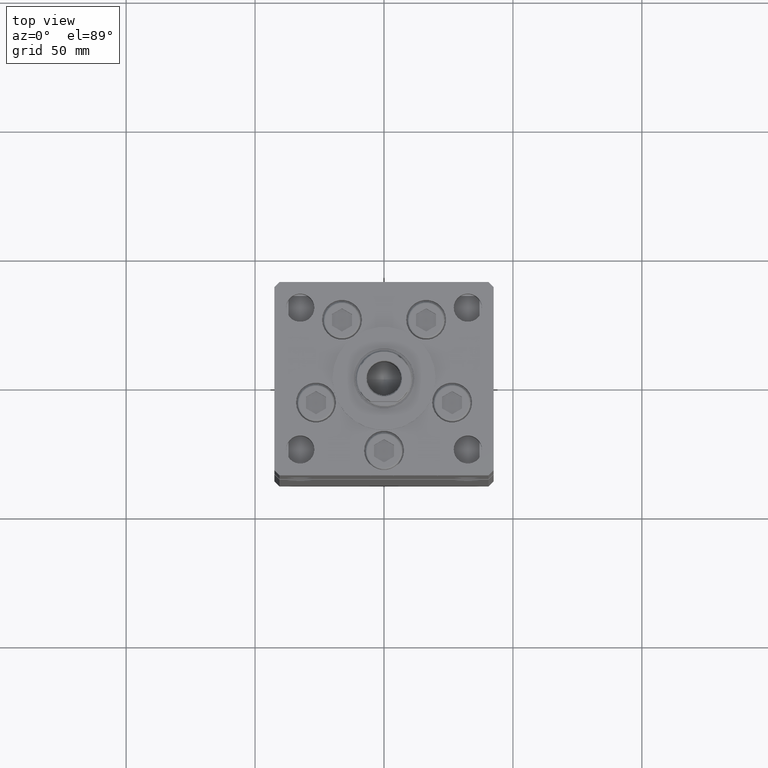
[diagram: clean part render]
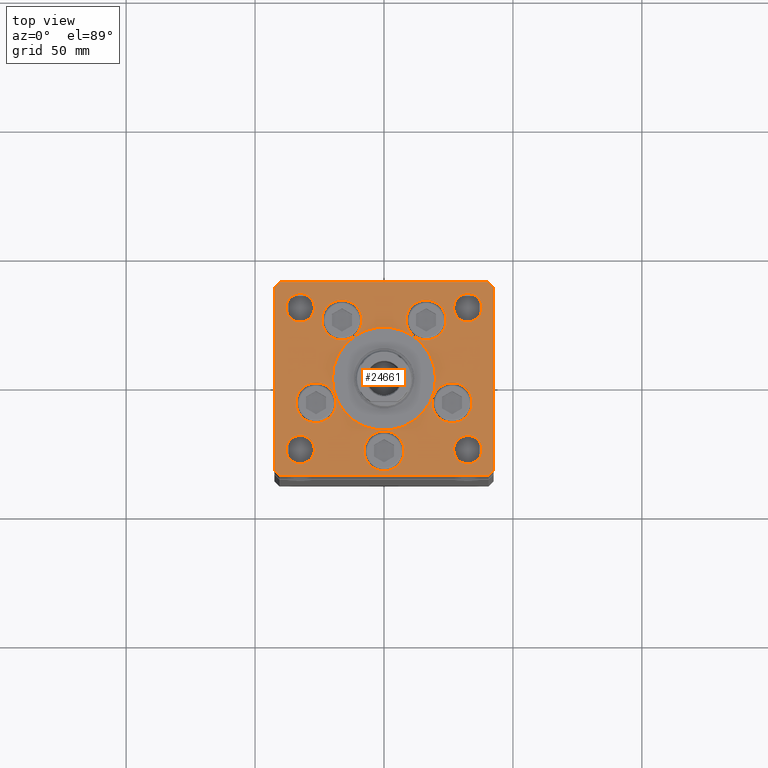
[diagram: same view with one face highlighted and labeled with its STEP entity id]
A machine part, top view. The second image highlights one B-rep face of the part: STEP entity #24661.
In plain terms, the highlighted planar face has unit normal (0, 0, 1).
Its self-contained STEP definition (entity closure, byte-faithful):
#182 = ORIENTED_EDGE ( 'NONE', *, *, #28743, .T. ) ;
#289 = LINE ( 'NONE', #20963, #5026 ) ;
#404 = VERTEX_POINT ( 'NONE', #52682 ) ;
#503 = FACE_BOUND ( 'NONE', #52999, .T. ) ;
#887 = DIRECTION ( 'NONE',  ( 1.000000000000000000, 0.000000000000000000, 0.000000000000000000 ) ) ;
#936 = CARTESIAN_POINT ( 'NONE',  ( -32.50000000000000000, -27.50000000000000355, 0.000000000000000000 ) ) ;
#1400 = CARTESIAN_POINT ( 'NONE',  ( -7.750000000000000000, -28.00000000000000000, 0.000000000000000000 ) ) ;
#1424 = ORIENTED_EDGE ( 'NONE', *, *, #34228, .F. ) ;
#1489 = DIRECTION ( 'NONE',  ( 0.000000000000000000, 0.000000000000000000, 1.000000000000000000 ) ) ;
#1521 = CIRCLE ( 'NONE', #10112, 7.750000000000000000 ) ;
#1738 = EDGE_CURVE ( 'NONE', #39059, #22025, #47368, .T. ) ;
#2054 = EDGE_CURVE ( 'NONE', #37003, #44862, #48295, .T. ) ;
#2302 = DIRECTION ( 'NONE',  ( -1.000000000000000000, 0.000000000000000000, 0.000000000000000000 ) ) ;
#2509 = AXIS2_PLACEMENT_3D ( 'NONE', #38812, #43905, #47935 ) ;
#2560 = LINE ( 'NONE', #51504, #47612 ) ;
#2813 = LINE ( 'NONE', #23775, #9135 ) ;
#2861 = VERTEX_POINT ( 'NONE', #51865 ) ;
#3052 = DIRECTION ( 'NONE',  ( -0.000000000000000000, -0.000000000000000000, -1.000000000000000000 ) ) ;
#3112 = ORIENTED_EDGE ( 'NONE', *, *, #21537, .T. ) ;
#3258 = EDGE_CURVE ( 'NONE', #46494, #52087, #38905, .T. ) ;
#3357 = DIRECTION ( 'NONE',  ( 0.000000000000000000, 0.000000000000000000, 1.000000000000000000 ) ) ;
#3468 = FACE_BOUND ( 'NONE', #32146, .T. ) ;
#4038 = DIRECTION ( 'NONE',  ( 0.7071067811865487940, -0.7071067811865463515, 0.000000000000000000 ) ) ;
#4223 = CARTESIAN_POINT ( 'NONE',  ( 0.000000000000000000, -6.938893903907228378E-15, 0.000000000000000000 ) ) ;
#4269 = VERTEX_POINT ( 'NONE', #27394 ) ;
#4752 = DIRECTION ( 'NONE',  ( 1.000000000000000000, 0.000000000000000000, 0.000000000000000000 ) ) ;
#5026 = VECTOR ( 'NONE', #4038, 1000.000000000000000 ) ;
#5063 = AXIS2_PLACEMENT_3D ( 'NONE', #20726, #16705, #25036 ) ;
#5550 = EDGE_CURVE ( 'NONE', #33806, #33852, #50131, .T. ) ;
#5691 = AXIS2_PLACEMENT_3D ( 'NONE', #19826, #43778, #40002 ) ;
#5776 = CARTESIAN_POINT ( 'NONE',  ( -38.00000000000000000, 27.50000000000000711, 0.000000000000000000 ) ) ;
#5881 = CIRCLE ( 'NONE', #19616, 5.499999999999998224 ) ;
#6732 = VECTOR ( 'NONE', #43302, 1000.000000000000000 ) ;
#6931 = EDGE_CURVE ( 'NONE', #11639, #4269, #14106, .T. ) ;
#7286 = EDGE_CURVE ( 'NONE', #21506, #36299, #51907, .T. ) ;
#7339 = VECTOR ( 'NONE', #48177, 1000.000000000000000 ) ;
#7345 = CIRCLE ( 'NONE', #37379, 7.750000000000000000 ) ;
#7581 = CARTESIAN_POINT ( 'NONE',  ( 42.50000000000000711, -35.49999999999992895, 0.000000000000000000 ) ) ;
#7773 = FACE_BOUND ( 'NONE', #52005, .T. ) ;
#7794 = CARTESIAN_POINT ( 'NONE',  ( -32.50000000000000000, 27.50000000000000711, 0.000000000000000000 ) ) ;
#8287 = FACE_BOUND ( 'NONE', #50243, .T. ) ;
#8557 = FACE_BOUND ( 'NONE', #13956, .T. ) ;
#8930 = CARTESIAN_POINT ( 'NONE',  ( 26.39865316429777664, -9.333333333333330373, 0.000000000000000000 ) ) ;
#9135 = VECTOR ( 'NONE', #40185, 1000.000000000000000 ) ;
#9305 = CARTESIAN_POINT ( 'NONE',  ( -34.14865316429777664, -9.333333333333328596, 0.000000000000000000 ) ) ;
#9579 = DIRECTION ( 'NONE',  ( 1.000000000000000000, 0.000000000000000000, 0.000000000000000000 ) ) ;
#9998 = CARTESIAN_POINT ( 'NONE',  ( -40.50000000000000711, -37.50000000000003553, 0.000000000000000000 ) ) ;
#10080 = CARTESIAN_POINT ( 'NONE',  ( 32.50000000000000000, 27.49999999999999645, 0.000000000000000000 ) ) ;
#10112 = AXIS2_PLACEMENT_3D ( 'NONE', #14166, #10128, #26524 ) ;
#10128 = DIRECTION ( 'NONE',  ( 0.000000000000000000, 0.000000000000000000, 1.000000000000000000 ) ) ;
#10599 = EDGE_LOOP ( 'NONE', ( #26199, #182 ) ) ;
#11185 = EDGE_CURVE ( 'NONE', #14925, #38842, #33115, .T. ) ;
#11336 = LINE ( 'NONE', #15384, #7339 ) ;
#11639 = VERTEX_POINT ( 'NONE', #9305 ) ;
#11999 = AXIS2_PLACEMENT_3D ( 'NONE', #15994, #3357, #51775 ) ;
#12482 = DIRECTION ( 'NONE',  ( 0.000000000000000000, 0.000000000000000000, 1.000000000000000000 ) ) ;
#12719 = LINE ( 'NONE', #20775, #47146 ) ;
#13175 = ORIENTED_EDGE ( 'NONE', *, *, #17395, .F. ) ;
#13466 = VERTEX_POINT ( 'NONE', #25718 ) ;
#13597 = CIRCLE ( 'NONE', #39347, 5.499999999999998224 ) ;
#13617 = DIRECTION ( 'NONE',  ( 0.000000000000000000, 0.000000000000000000, 1.000000000000000000 ) ) ;
#13666 = EDGE_CURVE ( 'NONE', #13466, #43003, #45048, .T. ) ;
#13760 = CARTESIAN_POINT ( 'NONE',  ( 24.07291334290544071, 22.74999999999999289, 0.000000000000000000 ) ) ;
#13832 = DIRECTION ( 'NONE',  ( 1.000000000000000000, 0.000000000000000000, 0.000000000000000000 ) ) ;
#13848 = DIRECTION ( 'NONE',  ( 9.773090005503134168E-17, -1.000000000000000000, 0.000000000000000000 ) ) ;
#13956 = EDGE_LOOP ( 'NONE', ( #15370, #13175 ) ) ;
#14038 = ORIENTED_EDGE ( 'NONE', *, *, #33581, .F. ) ;
#14070 = VERTEX_POINT ( 'NONE', #9998 ) ;
#14106 = CIRCLE ( 'NONE', #39016, 7.750000000000000000 ) ;
#14166 = CARTESIAN_POINT ( 'NONE',  ( 0.000000000000000000, -28.00000000000000000, 0.000000000000000000 ) ) ;
#14212 = ORIENTED_EDGE ( 'NONE', *, *, #6931, .F. ) ;
#14372 = DIRECTION ( 'NONE',  ( 1.000000000000000000, 0.000000000000000000, 0.000000000000000000 ) ) ;
#14390 = DIRECTION ( 'NONE',  ( 1.000000000000000000, 0.000000000000000000, 0.000000000000000000 ) ) ;
#14409 = CARTESIAN_POINT ( 'NONE',  ( -32.50000000000000000, 27.50000000000000711, 0.000000000000000000 ) ) ;
#14909 = ORIENTED_EDGE ( 'NONE', *, *, #5550, .F. ) ;
#14925 = VERTEX_POINT ( 'NONE', #24392 ) ;
#15168 = ORIENTED_EDGE ( 'NONE', *, *, #23149, .F. ) ;
#15180 = CIRCLE ( 'NONE', #41759, 5.499999999999998224 ) ;
#15346 = DIRECTION ( 'NONE',  ( -1.000000000000000000, 0.000000000000000000, 0.000000000000000000 ) ) ;
#15370 = ORIENTED_EDGE ( 'NONE', *, *, #19023, .F. ) ;
#15371 = CIRCLE ( 'NONE', #2509, 7.750000000000000000 ) ;
#15384 = CARTESIAN_POINT ( 'NONE',  ( 40.50000000000000711, 37.50000000000000711, 0.000000000000000000 ) ) ;
#15656 = CARTESIAN_POINT ( 'NONE',  ( -27.00000000000000355, 27.50000000000000711, 0.000000000000000000 ) ) ;
#15841 = DIRECTION ( 'NONE',  ( 1.000000000000000000, 0.000000000000000000, 0.000000000000000000 ) ) ;
#15994 = CARTESIAN_POINT ( 'NONE',  ( -32.50000000000000000, -27.50000000000000355, 0.000000000000000000 ) ) ;
#16104 = FACE_BOUND ( 'NONE', #48966, .T. ) ;
#16139 = ORIENTED_EDGE ( 'NONE', *, *, #17139, .T. ) ;
#16475 = ORIENTED_EDGE ( 'NONE', *, *, #23548, .T. ) ;
#16705 = DIRECTION ( 'NONE',  ( -0.000000000000000000, -0.000000000000000000, -1.000000000000000000 ) ) ;
#17105 = EDGE_CURVE ( 'NONE', #36299, #21506, #15180, .T. ) ;
#17139 = EDGE_CURVE ( 'NONE', #14070, #32161, #2813, .T. ) ;
#17395 = EDGE_CURVE ( 'NONE', #52146, #41834, #35735, .T. ) ;
#17612 = EDGE_LOOP ( 'NONE', ( #31308, #31572 ) ) ;
#17711 = AXIS2_PLACEMENT_3D ( 'NONE', #42507, #50566, #38191 ) ;
#19023 = EDGE_CURVE ( 'NONE', #41834, #52146, #39245, .T. ) ;
#19131 = AXIS2_PLACEMENT_3D ( 'NONE', #8930, #25860, #887 ) ;
#19616 = AXIS2_PLACEMENT_3D ( 'NONE', #10080, #1489, #14390 ) ;
#19729 = AXIS2_PLACEMENT_3D ( 'NONE', #21596, #37464, #24831 ) ;
#19826 = CARTESIAN_POINT ( 'NONE',  ( 0.000000000000000000, -6.938893903907228378E-15, 0.000000000000000000 ) ) ;
#20064 = AXIS2_PLACEMENT_3D ( 'NONE', #50417, #26206, #29715 ) ;
#20726 = CARTESIAN_POINT ( 'NONE',  ( 32.50000000000000000, -27.50000000000000355, 0.000000000000000000 ) ) ;
#20775 = CARTESIAN_POINT ( 'NONE',  ( 40.50000000000001421, -37.49999999999992184, 0.000000000000000000 ) ) ;
#20875 = DIRECTION ( 'NONE',  ( 0.000000000000000000, 0.000000000000000000, 1.000000000000000000 ) ) ;
#20963 = CARTESIAN_POINT ( 'NONE',  ( -42.50000000000000000, -35.50000000000004263, 0.000000000000000000 ) ) ;
#21405 = CARTESIAN_POINT ( 'NONE',  ( -26.39865316429777664, -9.333333333333330373, 0.000000000000000000 ) ) ;
#21506 = VERTEX_POINT ( 'NONE', #5776 ) ;
#21537 = EDGE_CURVE ( 'NONE', #28935, #24092, #25663, .T. ) ;
#21596 = CARTESIAN_POINT ( 'NONE',  ( -26.39865316429777664, -9.333333333333330373, 0.000000000000000000 ) ) ;
#22025 = VERTEX_POINT ( 'NONE', #30714 ) ;
#22396 = EDGE_CURVE ( 'NONE', #43600, #28975, #13597, .T. ) ;
#22891 = CARTESIAN_POINT ( 'NONE',  ( 42.50000000000000711, -35.49999999999992895, 0.000000000000000000 ) ) ;
#23029 = CARTESIAN_POINT ( 'NONE',  ( 16.32291334290544071, 22.74999999999999289, 0.000000000000000000 ) ) ;
#23149 = EDGE_CURVE ( 'NONE', #33852, #33806, #5881, .T. ) ;
#23269 = ORIENTED_EDGE ( 'NONE', *, *, #11185, .F. ) ;
#23548 = EDGE_CURVE ( 'NONE', #24092, #14070, #289, .T. ) ;
#23682 = ORIENTED_EDGE ( 'NONE', *, *, #2054, .F. ) ;
#23775 = CARTESIAN_POINT ( 'NONE',  ( -40.50000000000000711, -37.50000000000003553, 0.000000000000000000 ) ) ;
#23922 = DIRECTION ( 'NONE',  ( -0.000000000000000000, -0.000000000000000000, -1.000000000000000000 ) ) ;
#24092 = VERTEX_POINT ( 'NONE', #33681 ) ;
#24392 = CARTESIAN_POINT ( 'NONE',  ( -24.07291334290544071, 22.74999999999999289, 0.000000000000000000 ) ) ;
#24661 = ADVANCED_FACE ( 'NONE', ( #8557, #16104, #49148, #7773, #503, #8287, #36780, #36257, #3468, #48628, #28988 ), #52661, .T. ) ;
#24831 = DIRECTION ( 'NONE',  ( 1.000000000000000000, 0.000000000000000000, 0.000000000000000000 ) ) ;
#25036 = DIRECTION ( 'NONE',  ( -1.000000000000000000, 0.000000000000000000, 0.000000000000000000 ) ) ;
#25325 = AXIS2_PLACEMENT_3D ( 'NONE', #42604, #51725, #14372 ) ;
#25358 = CARTESIAN_POINT ( 'NONE',  ( 38.00000000000000000, -27.50000000000000355, 0.000000000000000000 ) ) ;
#25663 = LINE ( 'NONE', #50676, #45316 ) ;
#25718 = CARTESIAN_POINT ( 'NONE',  ( -27.00000000000000355, -27.50000000000000355, 0.000000000000000000 ) ) ;
#25786 = EDGE_CURVE ( 'NONE', #32161, #39059, #12719, .T. ) ;
#25860 = DIRECTION ( 'NONE',  ( 0.000000000000000000, 0.000000000000000000, 1.000000000000000000 ) ) ;
#26199 = ORIENTED_EDGE ( 'NONE', *, *, #22396, .T. ) ;
#26206 = DIRECTION ( 'NONE',  ( 0.000000000000000000, 0.000000000000000000, 1.000000000000000000 ) ) ;
#26524 = DIRECTION ( 'NONE',  ( 1.000000000000000000, 0.000000000000000000, 0.000000000000000000 ) ) ;
#26659 = EDGE_CURVE ( 'NONE', #4269, #11639, #37718, .T. ) ;
#27161 = CARTESIAN_POINT ( 'NONE',  ( -40.50000000000000000, 37.49999999999997158, 0.000000000000000000 ) ) ;
#27394 = CARTESIAN_POINT ( 'NONE',  ( -18.64865316429777664, -9.333333333333330373, 0.000000000000000000 ) ) ;
#27413 = EDGE_LOOP ( 'NONE', ( #16475, #16139, #42611, #32711, #49602, #42630, #30064, #3112 ) ) ;
#28376 = EDGE_CURVE ( 'NONE', #43003, #13466, #36900, .T. ) ;
#28511 = CARTESIAN_POINT ( 'NONE',  ( -16.32291334290544071, 22.74999999999999289, 0.000000000000000000 ) ) ;
#28621 = CARTESIAN_POINT ( 'NONE',  ( 16.32291334290544071, 22.74999999999999289, 0.000000000000000000 ) ) ;
#28695 = AXIS2_PLACEMENT_3D ( 'NONE', #7794, #23922, #15346 ) ;
#28743 = EDGE_CURVE ( 'NONE', #28975, #43600, #43726, .T. ) ;
#28887 = DIRECTION ( 'NONE',  ( 1.000000000000000000, 0.000000000000000000, 0.000000000000000000 ) ) ;
#28935 = VERTEX_POINT ( 'NONE', #38746 ) ;
#28975 = VERTEX_POINT ( 'NONE', #51394 ) ;
#28988 = FACE_BOUND ( 'NONE', #10599, .T. ) ;
#29287 = ORIENTED_EDGE ( 'NONE', *, *, #26659, .F. ) ;
#29404 = VECTOR ( 'NONE', #39562, 1000.000000000000000 ) ;
#29715 = DIRECTION ( 'NONE',  ( 1.000000000000000000, 0.000000000000000000, 0.000000000000000000 ) ) ;
#29925 = CARTESIAN_POINT ( 'NONE',  ( -8.572913342905440715, 22.74999999999999289, 0.000000000000000000 ) ) ;
#30064 = ORIENTED_EDGE ( 'NONE', *, *, #48008, .T. ) ;
#30408 = CARTESIAN_POINT ( 'NONE',  ( -38.00000000000000000, -27.50000000000000355, 0.000000000000000000 ) ) ;
#30714 = CARTESIAN_POINT ( 'NONE',  ( 42.50000000000001421, 35.50000000000002132, 0.000000000000000000 ) ) ;
#30807 = DIRECTION ( 'NONE',  ( -0.000000000000000000, -0.000000000000000000, -1.000000000000000000 ) ) ;
#31308 = ORIENTED_EDGE ( 'NONE', *, *, #17105, .T. ) ;
#31413 = AXIS2_PLACEMENT_3D ( 'NONE', #28511, #36580, #40881 ) ;
#31572 = ORIENTED_EDGE ( 'NONE', *, *, #7286, .T. ) ;
#31627 = EDGE_CURVE ( 'NONE', #22025, #404, #2560, .T. ) ;
#31632 = DIRECTION ( 'NONE',  ( 1.000000000000000000, 0.000000000000000000, 0.000000000000000000 ) ) ;
#31983 = AXIS2_PLACEMENT_3D ( 'NONE', #28621, #12482, #28887 ) ;
#32146 = EDGE_LOOP ( 'NONE', ( #50764, #48069 ) ) ;
#32161 = VERTEX_POINT ( 'NONE', #50293 ) ;
#32711 = ORIENTED_EDGE ( 'NONE', *, *, #1738, .T. ) ;
#33063 = ORIENTED_EDGE ( 'NONE', *, *, #49539, .F. ) ;
#33115 = CIRCLE ( 'NONE', #31413, 7.750000000000000000 ) ;
#33154 = DIRECTION ( 'NONE',  ( 0.7071067811865474617, 0.7071067811865474617, 0.000000000000000000 ) ) ;
#33581 = EDGE_CURVE ( 'NONE', #50660, #2861, #46808, .T. ) ;
#33681 = CARTESIAN_POINT ( 'NONE',  ( -42.50000000000000000, -35.50000000000004263, 0.000000000000000000 ) ) ;
#33806 = VERTEX_POINT ( 'NONE', #41392 ) ;
#33852 = VERTEX_POINT ( 'NONE', #34406 ) ;
#34228 = EDGE_CURVE ( 'NONE', #44862, #37003, #7345, .T. ) ;
#34261 = DIRECTION ( 'NONE',  ( 0.000000000000000000, 0.000000000000000000, 1.000000000000000000 ) ) ;
#34299 = DIRECTION ( 'NONE',  ( -0.7071067811865524577, 0.7071067811865426878, 0.000000000000000000 ) ) ;
#34406 = CARTESIAN_POINT ( 'NONE',  ( 27.00000000000000355, 27.49999999999999645, 0.000000000000000000 ) ) ;
#35323 = DIRECTION ( 'NONE',  ( -1.000000000000000000, 0.000000000000000000, 0.000000000000000000 ) ) ;
#35735 = CIRCLE ( 'NONE', #5691, 20.00000000000000000 ) ;
#36257 = FACE_BOUND ( 'NONE', #36265, .T. ) ;
#36265 = EDGE_LOOP ( 'NONE', ( #14909, #15168 ) ) ;
#36299 = VERTEX_POINT ( 'NONE', #15656 ) ;
#36580 = DIRECTION ( 'NONE',  ( 0.000000000000000000, 0.000000000000000000, 1.000000000000000000 ) ) ;
#36780 = FACE_BOUND ( 'NONE', #17612, .T. ) ;
#36900 = CIRCLE ( 'NONE', #11999, 5.499999999999998224 ) ;
#37003 = VERTEX_POINT ( 'NONE', #52805 ) ;
#37379 = AXIS2_PLACEMENT_3D ( 'NONE', #23029, #51801, #31632 ) ;
#37464 = DIRECTION ( 'NONE',  ( 0.000000000000000000, 0.000000000000000000, 1.000000000000000000 ) ) ;
#37718 = CIRCLE ( 'NONE', #19729, 7.750000000000000000 ) ;
#37965 = CARTESIAN_POINT ( 'NONE',  ( 18.64865316429777664, -9.333333333333328596, 0.000000000000000000 ) ) ;
#38170 = EDGE_CURVE ( 'NONE', #404, #47970, #11336, .T. ) ;
#38191 = DIRECTION ( 'NONE',  ( 1.000000000000000000, 0.000000000000000000, 0.000000000000000000 ) ) ;
#38746 = CARTESIAN_POINT ( 'NONE',  ( -42.50000000000000711, 35.50000000000000000, 0.000000000000000000 ) ) ;
#38812 = CARTESIAN_POINT ( 'NONE',  ( 26.39865316429777664, -9.333333333333330373, 0.000000000000000000 ) ) ;
#38842 = VERTEX_POINT ( 'NONE', #29925 ) ;
#38905 = CIRCLE ( 'NONE', #19131, 7.750000000000000000 ) ;
#39016 = AXIS2_PLACEMENT_3D ( 'NONE', #21405, #13617, #9579 ) ;
#39059 = VERTEX_POINT ( 'NONE', #7581 ) ;
#39245 = CIRCLE ( 'NONE', #43546, 20.00000000000000000 ) ;
#39347 = AXIS2_PLACEMENT_3D ( 'NONE', #48468, #3052, #35323 ) ;
#39562 = DIRECTION ( 'NONE',  ( 9.773090005503145261E-17, 1.000000000000000000, 0.000000000000000000 ) ) ;
#40002 = DIRECTION ( 'NONE',  ( 1.000000000000000000, 0.000000000000000000, 0.000000000000000000 ) ) ;
#40185 = DIRECTION ( 'NONE',  ( 1.000000000000000000, 1.370645709413773283E-15, 0.000000000000000000 ) ) ;
#40376 = CARTESIAN_POINT ( 'NONE',  ( -20.00000000000000000, -6.938893903907228378E-15, 0.000000000000000000 ) ) ;
#40871 = CIRCLE ( 'NONE', #17711, 7.750000000000000000 ) ;
#40881 = DIRECTION ( 'NONE',  ( 1.000000000000000000, 0.000000000000000000, 0.000000000000000000 ) ) ;
#41392 = CARTESIAN_POINT ( 'NONE',  ( 38.00000000000000000, 27.49999999999999645, 0.000000000000000000 ) ) ;
#41743 = ORIENTED_EDGE ( 'NONE', *, *, #3258, .F. ) ;
#41759 = AXIS2_PLACEMENT_3D ( 'NONE', #14409, #30807, #2302 ) ;
#41834 = VERTEX_POINT ( 'NONE', #40376 ) ;
#41943 = EDGE_CURVE ( 'NONE', #38842, #14925, #40871, .T. ) ;
#42507 = CARTESIAN_POINT ( 'NONE',  ( -16.32291334290544071, 22.74999999999999289, 0.000000000000000000 ) ) ;
#42604 = CARTESIAN_POINT ( 'NONE',  ( 0.000000000000000000, -28.00000000000000000, 0.000000000000000000 ) ) ;
#42611 = ORIENTED_EDGE ( 'NONE', *, *, #25786, .T. ) ;
#42630 = ORIENTED_EDGE ( 'NONE', *, *, #38170, .T. ) ;
#43003 = VERTEX_POINT ( 'NONE', #30408 ) ;
#43302 = DIRECTION ( 'NONE',  ( -0.7071067811865536790, -0.7071067811865414665, 0.000000000000000000 ) ) ;
#43347 = ORIENTED_EDGE ( 'NONE', *, *, #45484, .F. ) ;
#43382 = AXIS2_PLACEMENT_3D ( 'NONE', #936, #34261, #13832 ) ;
#43546 = AXIS2_PLACEMENT_3D ( 'NONE', #4223, #20875, #4752 ) ;
#43600 = VERTEX_POINT ( 'NONE', #25358 ) ;
#43726 = CIRCLE ( 'NONE', #5063, 5.499999999999998224 ) ;
#43778 = DIRECTION ( 'NONE',  ( 0.000000000000000000, 0.000000000000000000, 1.000000000000000000 ) ) ;
#43905 = DIRECTION ( 'NONE',  ( 0.000000000000000000, 0.000000000000000000, 1.000000000000000000 ) ) ;
#44862 = VERTEX_POINT ( 'NONE', #13760 ) ;
#44947 = EDGE_LOOP ( 'NONE', ( #1424, #23682 ) ) ;
#45048 = CIRCLE ( 'NONE', #43382, 5.499999999999998224 ) ;
#45316 = VECTOR ( 'NONE', #13848, 1000.000000000000000 ) ;
#45484 = EDGE_CURVE ( 'NONE', #2861, #50660, #1521, .T. ) ;
#45650 = DIRECTION ( 'NONE',  ( -0.000000000000000000, 0.000000000000000000, 1.000000000000000000 ) ) ;
#46257 = AXIS2_PLACEMENT_3D ( 'NONE', #52927, #45650, #15841 ) ;
#46494 = VERTEX_POINT ( 'NONE', #47521 ) ;
#46582 = CARTESIAN_POINT ( 'NONE',  ( 20.00000000000000000, -4.489600305612522259E-15, 0.000000000000000000 ) ) ;
#46716 = ORIENTED_EDGE ( 'NONE', *, *, #41943, .F. ) ;
#46806 = LINE ( 'NONE', #47863, #6732 ) ;
#46808 = CIRCLE ( 'NONE', #25325, 7.750000000000000000 ) ;
#47146 = VECTOR ( 'NONE', #33154, 1000.000000000000114 ) ;
#47368 = LINE ( 'NONE', #22891, #29404 ) ;
#47521 = CARTESIAN_POINT ( 'NONE',  ( 34.14865316429777664, -9.333333333333330373, 0.000000000000000000 ) ) ;
#47612 = VECTOR ( 'NONE', #34299, 1000.000000000000000 ) ;
#47863 = CARTESIAN_POINT ( 'NONE',  ( -40.50000000000000000, 37.49999999999997158, 0.000000000000000000 ) ) ;
#47935 = DIRECTION ( 'NONE',  ( 1.000000000000000000, 0.000000000000000000, 0.000000000000000000 ) ) ;
#47970 = VERTEX_POINT ( 'NONE', #27161 ) ;
#48008 = EDGE_CURVE ( 'NONE', #47970, #28935, #46806, .T. ) ;
#48069 = ORIENTED_EDGE ( 'NONE', *, *, #28376, .F. ) ;
#48177 = DIRECTION ( 'NONE',  ( -1.000000000000000000, -4.283267841918041508E-16, 0.000000000000000000 ) ) ;
#48295 = CIRCLE ( 'NONE', #31983, 7.750000000000000000 ) ;
#48468 = CARTESIAN_POINT ( 'NONE',  ( 32.50000000000000000, -27.50000000000000355, 0.000000000000000000 ) ) ;
#48628 = FACE_OUTER_BOUND ( 'NONE', #27413, .T. ) ;
#48966 = EDGE_LOOP ( 'NONE', ( #46716, #23269 ) ) ;
#49148 = FACE_BOUND ( 'NONE', #44947, .T. ) ;
#49539 = EDGE_CURVE ( 'NONE', #52087, #46494, #15371, .T. ) ;
#49602 = ORIENTED_EDGE ( 'NONE', *, *, #31627, .T. ) ;
#50131 = CIRCLE ( 'NONE', #20064, 5.499999999999998224 ) ;
#50243 = EDGE_LOOP ( 'NONE', ( #29287, #14212 ) ) ;
#50293 = CARTESIAN_POINT ( 'NONE',  ( 40.50000000000001421, -37.49999999999992184, 0.000000000000000000 ) ) ;
#50417 = CARTESIAN_POINT ( 'NONE',  ( 32.50000000000000000, 27.49999999999999645, 0.000000000000000000 ) ) ;
#50566 = DIRECTION ( 'NONE',  ( 0.000000000000000000, 0.000000000000000000, 1.000000000000000000 ) ) ;
#50660 = VERTEX_POINT ( 'NONE', #1400 ) ;
#50676 = CARTESIAN_POINT ( 'NONE',  ( -42.50000000000000711, 35.50000000000000000, 0.000000000000000000 ) ) ;
#50764 = ORIENTED_EDGE ( 'NONE', *, *, #13666, .F. ) ;
#51394 = CARTESIAN_POINT ( 'NONE',  ( 27.00000000000000355, -27.50000000000000355, 0.000000000000000000 ) ) ;
#51504 = CARTESIAN_POINT ( 'NONE',  ( 42.50000000000001421, 35.50000000000002132, 0.000000000000000000 ) ) ;
#51725 = DIRECTION ( 'NONE',  ( 0.000000000000000000, 0.000000000000000000, 1.000000000000000000 ) ) ;
#51775 = DIRECTION ( 'NONE',  ( 1.000000000000000000, 0.000000000000000000, 0.000000000000000000 ) ) ;
#51801 = DIRECTION ( 'NONE',  ( 0.000000000000000000, 0.000000000000000000, 1.000000000000000000 ) ) ;
#51865 = CARTESIAN_POINT ( 'NONE',  ( 7.750000000000000000, -28.00000000000000000, 0.000000000000000000 ) ) ;
#51907 = CIRCLE ( 'NONE', #28695, 5.499999999999998224 ) ;
#52005 = EDGE_LOOP ( 'NONE', ( #41743, #33063 ) ) ;
#52087 = VERTEX_POINT ( 'NONE', #37965 ) ;
#52146 = VERTEX_POINT ( 'NONE', #46582 ) ;
#52661 = PLANE ( 'NONE',  #46257 ) ;
#52682 = CARTESIAN_POINT ( 'NONE',  ( 40.50000000000000711, 37.50000000000000711, 0.000000000000000000 ) ) ;
#52805 = CARTESIAN_POINT ( 'NONE',  ( 8.572913342905442491, 22.74999999999999289, 0.000000000000000000 ) ) ;
#52927 = CARTESIAN_POINT ( 'NONE',  ( 0.000000000000000000, 0.000000000000000000, 0.000000000000000000 ) ) ;
#52999 = EDGE_LOOP ( 'NONE', ( #43347, #14038 ) ) ;